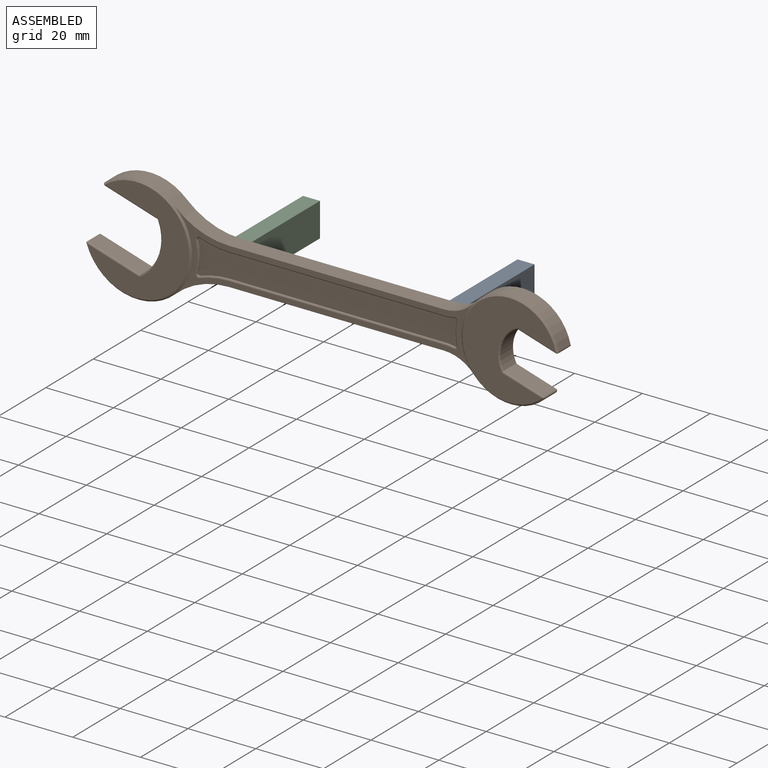
[diagram: assembled view]
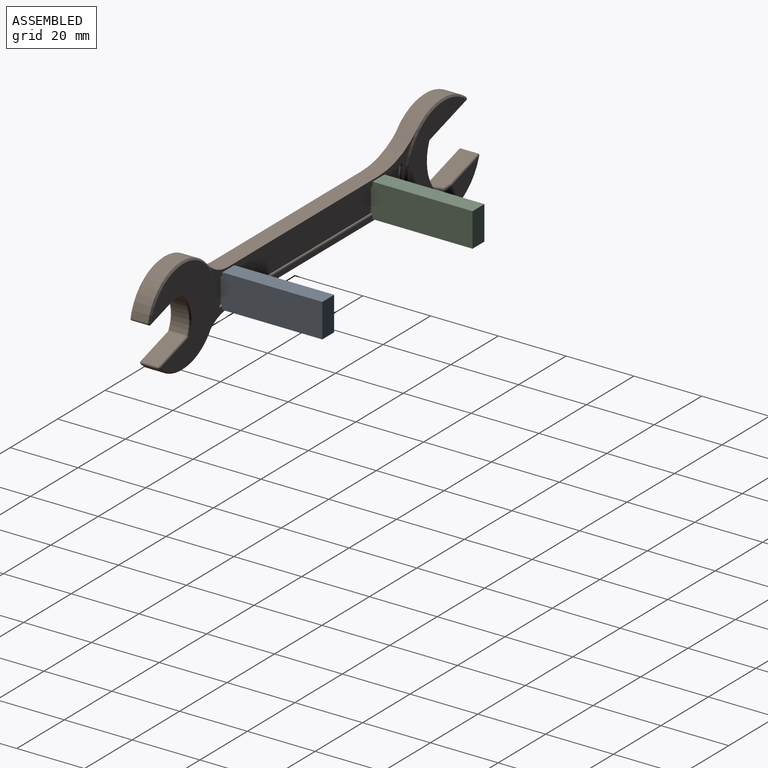
[diagram: assembled view, second angle]
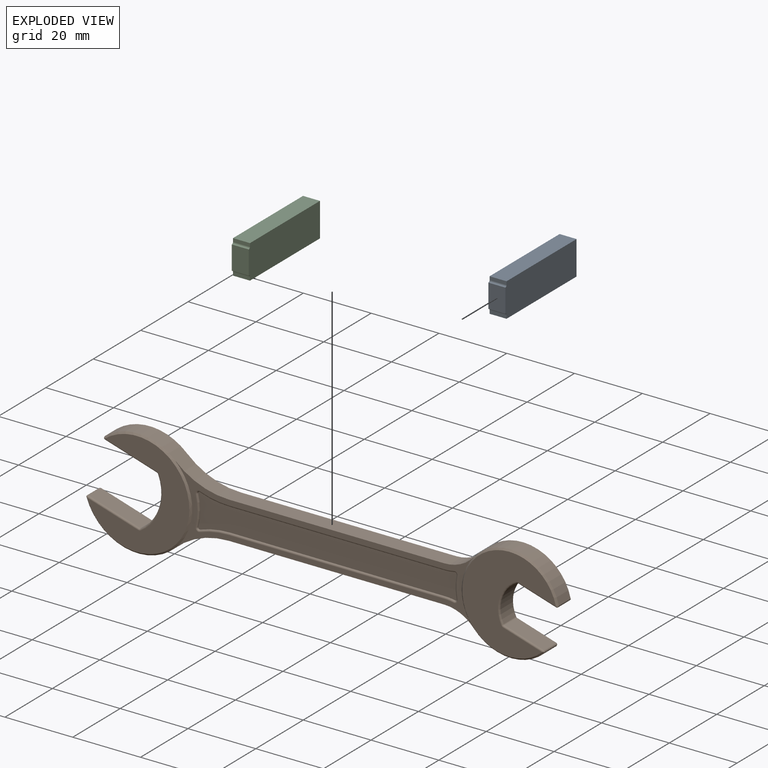
[diagram: exploded view]
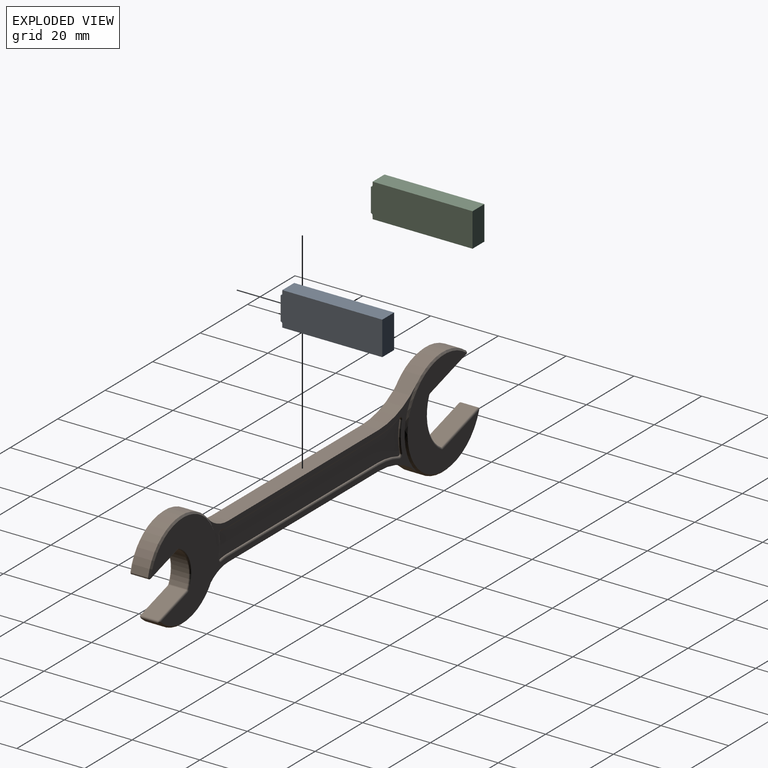
[diagram: exploded view, second angle]
ASSEMBLY  parts=3 mates=2
PART A: 10 faces, bbox 10x30x5 mm
  f0: plane 5x1mm, normal (-0.01,-1,0), area 5mm2, adj f1,f6,f7,f8
  f1: cylinder r=0.5mm len=5mm, axis (0,0,-1), area 3.9mm2, adj f0,f6,f7,f9
  f2: cylinder r=0.5mm len=5mm, axis (0,0,-1), area 3.9mm2, adj f3,f6,f7,f9
  f3: plane 5x1mm, normal (0,-1,0), area 5mm2, adj f2,f5,f6,f7
  f4: plane 10x5mm, normal (0,1,0), area 50mm2, adj f5,f6,f7,f8
  f5: plane 29.5x5mm, normal (1,0,0), area 147.5mm2, adj f3,f4,f6,f7
  f6: plane 30x10mm, normal (0,0,-1), area 298.6mm2, adj f0,f1,f2,f3,f4,f5,f8,f9
  f7: plane 30x10mm, normal (0,0,1), area 298.6mm2, adj f0,f1,f2,f3,f4,f5,f8,f9
  f8: plane 29.49x5mm, normal (-1,0,0), area 147.5mm2, adj f0,f4,f6,f7
  f9: plane 7x5mm, normal (0,-1,0), area 35mm2, adj f1,f2,f6,f7
PART B: 88 faces, bbox 139.5x6x32 mm
  f0: torus R=13mm, axis (0,-1,0), area 2.3mm2, adj f1,f20,f71,f87
  f1: cylinder r=0.5mm len=63.51mm, axis (-1,0,0), area 49.9mm2, adj f0,f2,f20,f71
  f2: torus R=25mm, axis (0,-1,0), area 6.9mm2, adj f1,f20,f71,f86
  f3: torus R=16mm, axis (0,-1,0), area 5mm2, adj f4,f20,f71,f87
  f4: torus R=1mm, axis (0,-1,0), area 1.1mm2, adj f3,f6,f20,f71
  f5: torus R=17.5mm, axis (0,-1,0), area 7mm2, adj f7,f20,f71,f86
  f6: torus R=13mm, axis (0,-1,0), area 2.3mm2, adj f4,f8,f20,f71
  f7: torus R=1mm, axis (0,-1,0), area 1.2mm2, adj f5,f9,f20,f71
  f8: cylinder r=0.5mm len=63.51mm, axis (1,0,0), area 49.9mm2, adj f6,f9,f20,f71
  f9: torus R=25mm, axis (0,-1,0), area 6.9mm2, adj f7,f8,f20,f71
  f10: cylinder r=0.5mm len=63.51mm, axis (-1,0,0), area 49.9mm2, adj f11,f12,f21,f70
  f11: torus R=13mm, axis (0,1,0), area 2.3mm2, adj f10,f21,f70,f85
  f12: torus R=25mm, axis (0,1,0), area 6.9mm2, adj f10,f21,f70,f84
  f13: torus R=16mm, axis (0,1,0), area 5mm2, adj f15,f21,f70,f85
  f14: torus R=17.5mm, axis (0,1,0), area 7mm2, adj f16,f21,f70,f84
  f15: torus R=1mm, axis (0,1,0), area 1.1mm2, adj f13,f17,f21,f70
  f16: torus R=1mm, axis (0,1,0), area 1.2mm2, adj f14,f18,f21,f70
  f17: torus R=13mm, axis (0,1,0), area 2.3mm2, adj f15,f19,f21,f70
  f18: torus R=25mm, axis (0,1,0), area 6.9mm2, adj f16,f19,f21,f70
  f19: cylinder r=0.5mm len=63.51mm, axis (1,0,0), area 49.9mm2, adj f17,f18,f21,f70
  f20: plane 76.4x10.14mm, normal (0,-1,0), area 541.6mm2, adj f0,f1,f2,f3,f4,f5,f6,f7
  f21: plane 76.4x10.14mm, normal (0,1,0), area 541.6mm2, adj f10,f11,f12,f13,f14,f15,f16,f17
  f22: cylinder r=0.5mm len=15.22mm, axis (0.96,0,-0.29), area 12.4mm2, adj f23,f57,f61,f83
  f23: torus R=1mm, axis (0,1,0), area 0.5mm2, adj f22,f24,f61,f82
  f24: torus R=13.5mm, axis (0,1,0), area 14.4mm2, adj f23,f25,f56,f61
  f25: torus R=1mm, axis (0,1,0), area 0.5mm2, adj f24,f27,f28,f61
  f26: torus R=1mm, axis (0,1,0), area 0.5mm2, adj f29,f30,f58,f82
  f27: cylinder r=0.5mm len=15.48mm, axis (-0.96,0,0.29), area 12.6mm2, adj f25,f31,f55,f61
  f28: cylinder r=0.5mm len=5mm, axis (0,-1,0), area 2.2mm2, adj f25,f32,f55,f56
  f29: torus R=13.5mm, axis (0,1,0), area 14.4mm2, adj f26,f32,f56,f58
  f30: cylinder r=0.5mm len=15.22mm, axis (-0.96,0,0.29), area 12.4mm2, adj f26,f57,f58,f81
  f31: sphere r=0.5mm, area 0.3mm2, adj f27,f50,f76
  f32: torus R=1mm, axis (0,1,0), area 0.5mm2, adj f28,f29,f33,f58
  f33: cylinder r=0.5mm len=15.48mm, axis (0.96,0,-0.29), area 12.6mm2, adj f32,f34,f55,f58
  f34: sphere r=0.5mm, area 0.3mm2, adj f33,f50,f77
  f35: sphere r=0.5mm, area 0.3mm2, adj f36,f74,f78
  f36: cylinder r=0.5mm len=11.3mm, axis (0.96,0,-0.29), area 9.2mm2, adj f35,f54,f59,f80
  f37: cylinder r=0.5mm len=5mm, axis (0,-1,0), area 1.9mm2, adj f53,f54,f79,f80
  f38: torus R=9.5mm, axis (0,1,0), area 11.3mm2, adj f39,f53,f59,f80
  f39: torus R=1mm, axis (0,1,0), area 0.4mm2, adj f38,f42,f43,f59
  f40: cylinder r=0.5mm len=11.3mm, axis (-0.96,0,0.29), area 9.2mm2, adj f44,f54,f60,f79
  f41: torus R=9.5mm, axis (0,1,0), area 11.3mm2, adj f45,f53,f60,f79
  f42: cylinder r=0.5mm len=5mm, axis (0,-1,0), area 2mm2, adj f39,f45,f52,f53
  f43: cylinder r=0.5mm len=11.6mm, axis (-0.96,0,0.29), area 9.4mm2, adj f39,f46,f52,f59
  f44: sphere r=0.5mm, area 0.3mm2, adj f40,f75,f78
  f45: torus R=1mm, axis (0,1,0), area 0.4mm2, adj f41,f42,f47,f60
  f46: sphere r=0.5mm, area 0.3mm2, adj f43,f49,f74
  f47: cylinder r=0.5mm len=11.6mm, axis (0.96,0,-0.29), area 9.4mm2, adj f45,f48,f52,f60
  f48: sphere r=0.5mm, area 0.3mm2, adj f47,f49,f75
  f49: cylinder r=0.5mm len=5mm, axis (0,-1,0), area 5.2mm2, adj f46,f48,f52,f73
  f50: cylinder r=0.5mm len=5mm, axis (0,-1,0), area 5.5mm2, adj f31,f34,f55,f69
  f51: cylinder r=0.5mm len=5mm, axis (0,-1,0), area 5.5mm2, adj f57,f72,f81,f83
  f52: plane 11.45x5mm, normal (0.29,0,0.96), area 59.9mm2, adj f42,f43,f47,f49
  f53: cylinder r=9mm len=12.05mm, axis (0,-1,0), area 70.5mm2, adj f37,f38,f41,f42
  f54: plane 11.16x5mm, normal (-0.29,0,-0.96), area 58.3mm2, adj f36,f37,f40,f78
  f55: plane 15.33x5mm, normal (-0.29,0,-0.96), area 80.2mm2, adj f27,f28,f33,f50
  f56: cylinder r=13mm len=15.83mm, axis (0,-1,0), area 90.3mm2, adj f24,f28,f29,f82
  f57: plane 15.08x5mm, normal (0.29,0,0.96), area 78.8mm2, adj f22,f30,f51,f82
  f58: plane 31x30.2mm, normal (0,1,0), area 382.7mm2, adj f26,f29,f30,f32,f33,f77
  f59: plane 28x27.64mm, normal (0,1,0), area 397.1mm2, adj f36,f38,f39,f43,f74,f80
  f60: plane 28x27.64mm, normal (0,-1,0), area 397.1mm2, adj f40,f41,f45,f47,f75,f79
  f61: plane 31x30.2mm, normal (0,-1,0), area 382.7mm2, adj f22,f23,f24,f25,f27,f76
  f62: cylinder r=11.5mm len=8.7mm, axis (0,-1,0), area 49.3mm2, adj f63,f68,f70,f71
  f63: plane 63.51x5mm, normal (0,0,1), area 317.5mm2, adj f62,f64,f70,f71
  f64: cylinder r=23.5mm len=15.96mm, axis (0,-1,0), area 87.7mm2, adj f63,f69,f70,f71
  f65: cylinder r=23.5mm len=15.96mm, axis (0,-1,0), area 87.7mm2, adj f66,f70,f71,f72
  f66: plane 63.51x5mm, normal (0,0,-1), area 317.5mm2, adj f65,f67,f70,f71
  f67: cylinder r=11.5mm len=8.7mm, axis (0,-1,0), area 49.3mm2, adj f66,f70,f71,f73
  f68: cylinder r=14.5mm len=25.1mm, axis (0,-1,0), area 159.6mm2, adj f62,f74,f75,f78
  f69: cylinder r=16mm len=20.6mm, axis (0,-1,0), area 112.1mm2, adj f50,f64,f76,f77
  f70: plane 88.17x23.49mm, normal (0,1,0), area 296.7mm2, adj f10,f11,f12,f13,f14,f15,f16,f17
  f71: plane 88.17x23.49mm, normal (0,-1,0), area 296.7mm2, adj f0,f1,f2,f3,f4,f5,f6,f7
  f72: cylinder r=16mm len=26.04mm, axis (0,-1,0), area 159.5mm2, adj f51,f65,f76,f77
  f73: cylinder r=14.5mm len=20.86mm, axis (0,-1,0), area 116.6mm2, adj f49,f67,f74,f75
  f74: cone r=14mm half-angle=45deg, axis (0,-1,0), area 53.2mm2, adj f35,f46,f59,f68,f70,f73
  f75: cone r=14.5mm half-angle=45deg, axis (0,1,0), area 53.2mm2, adj f44,f48,f60,f68,f71,f73
  f76: cone r=16mm half-angle=45deg, axis (0,1,0), area 56.6mm2, adj f31,f61,f69,f71,f72,f83
  f77: cone r=15.5mm half-angle=45deg, axis (0,-1,0), area 56.6mm2, adj f34,f58,f69,f70,f72,f81
  f78: cylinder r=0.5mm len=5mm, axis (0,-1,0), area 5.2mm2, adj f35,f44,f54,f68
  f79: torus R=1mm, axis (0,1,0), area 0.4mm2, adj f37,f40,f41,f60
  f80: torus R=1mm, axis (0,1,0), area 0.4mm2, adj f36,f37,f38,f59
  f81: sphere r=0.5mm, area 0.3mm2, adj f30,f51,f77
  f82: cylinder r=0.5mm len=5mm, axis (0,-1,0), area 2.1mm2, adj f23,f26,f56,f57
  f83: sphere r=0.5mm, area 0.3mm2, adj f22,f51,f76
  f84: torus R=1mm, axis (0,1,0), area 1.2mm2, adj f12,f14,f21,f70
  f85: torus R=1mm, axis (0,1,0), area 1.1mm2, adj f11,f13,f21,f70
  f86: torus R=1mm, axis (0,-1,0), area 1.2mm2, adj f2,f5,f20,f71
  f87: torus R=1mm, axis (0,-1,0), area 1.1mm2, adj f0,f3,f20,f71
PART C: same geometry as A
PLACE A rot(axis=(0,1,0),90deg) t=(85.66,85.82,120.96)mm
PLACE B at identity
PLACE C rot(axis=(0,1,0),90deg) t=(22.34,85.82,120.96)mm
MATE slider A.f9 <-> B.f21  axis (0,-1,0) through (85.66,55.82,124.46)mm
MATE planar C.f9 <-> B.f21  axis (0,-1,0) through (22.34,55.82,120.96)mm
